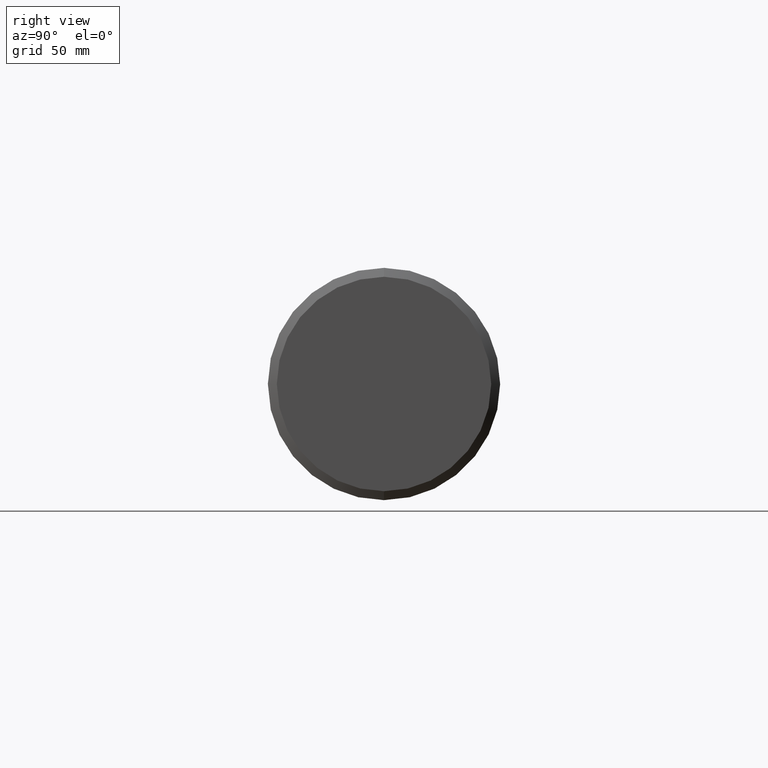
[diagram: clean part render]
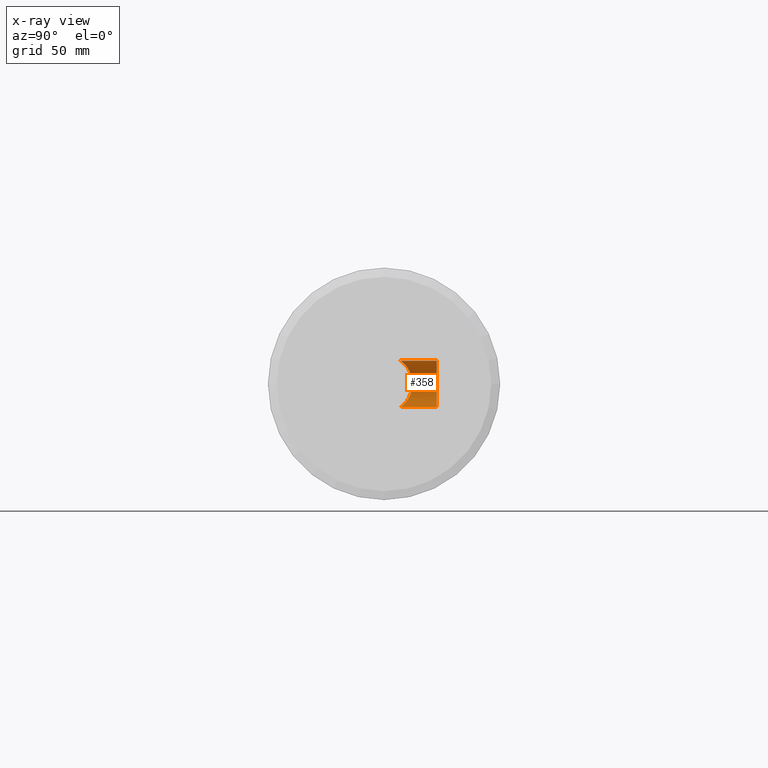
[diagram: x-ray — body ghosted, one internal face saturated and labeled with its STEP entity id]
A machine part, right view, then the same camera in x-ray: the body is ghosted and one INTERNAL B-rep face — a face not visible from any outside direction — is saturated and labeled: STEP entity #358.
In plain terms, the highlighted cylindrical surface (edge-blend (fillet) strip) has radius 9 mm, axis along (0, 1, 0).
Its self-contained STEP definition (entity closure, byte-faithful):
#268 = ORIENTED_EDGE ( 'NONE', *, *, #269, .F. ) ;
#269 = EDGE_CURVE ( 'NONE', #315, #367, #1396, .T. ) ;
#313 = EDGE_CURVE ( 'NONE', #314, #315, #1628, .T. ) ;
#314 = VERTEX_POINT ( 'NONE', #1549 ) ;
#315 = VERTEX_POINT ( 'NONE', #1629 ) ;
#316 = ORIENTED_EDGE ( 'NONE', *, *, #418, .T. ) ;
#358 = ADVANCED_FACE ( 'NONE', ( #1711 ), #1710, .F. ) ;
#359 = EDGE_LOOP ( 'NONE', ( #360, #316, #419, #268 ) ) ;
#360 = ORIENTED_EDGE ( 'NONE', *, *, #313, .F. ) ;
#367 = VERTEX_POINT ( 'NONE', #1778 ) ;
#407 = EDGE_CURVE ( 'NONE', #408, #367, #1830, .T. ) ;
#408 = VERTEX_POINT ( 'NONE', #1780 ) ;
#418 = EDGE_CURVE ( 'NONE', #314, #408, #1739, .T. ) ;
#419 = ORIENTED_EDGE ( 'NONE', *, *, #407, .T. ) ;
#1373 = DIRECTION ( 'NONE',  ( -0.0000000000000000000, 1.000000000000000000, -0.0000000000000000000 ) ) ;
#1374 = VECTOR ( 'NONE', #1373, 1000.000000000000000 ) ;
#1375 = CARTESIAN_POINT ( 'NONE',  ( 37.99999999999999300, -45.00000000000000000, 9.000000000000003600 ) ) ;
#1396 = LINE ( 'NONE', #1375, #1374 ) ;
#1505 = CARTESIAN_POINT ( 'NONE',  ( 35.56241124897054800, 6.773151438223648000, 8.668594485892423800 ) ) ;
#1506 = CARTESIAN_POINT ( 'NONE',  ( 35.00207751754993500, 6.994374932525801100, 8.491102994853516600 ) ) ;
#1507 = CARTESIAN_POINT ( 'NONE',  ( 34.73243995391133200, 7.115117841734931200, 8.390691223271426600 ) ) ;
#1508 = CARTESIAN_POINT ( 'NONE',  ( 33.94870166744479400, 7.496988139732116500, 8.056647767958544600 ) ) ;
#1509 = CARTESIAN_POINT ( 'NONE',  ( 33.45930032922770200, 7.777229871337514300, 7.790658944439846000 ) ) ;
#1510 = CARTESIAN_POINT ( 'NONE',  ( 32.76260568321712400, 8.209575931333963800, 7.324464543071621300 ) ) ;
#1511 = CARTESIAN_POINT ( 'NONE',  ( 32.53662872687979000, 8.355986537263556000, 7.157469761059587700 ) ) ;
#1512 = CARTESIAN_POINT ( 'NONE',  ( 37.99999999999999300, 6.324555320336747500, 9.000000000000003600 ) ) ;
#1513 = CARTESIAN_POINT ( 'NONE',  ( 37.68253252754211500, 6.324555320336748400, 9.000000000000003600 ) ) ;
#1514 = CARTESIAN_POINT ( 'NONE',  ( 37.36758758028091900, 6.348810466722651000, 8.983078160859561100 ) ) ;
#1515 = CARTESIAN_POINT ( 'NONE',  ( 36.75246002574575500, 6.439239462942379300, 8.918479843861545600 ) ) ;
#1516 = CARTESIAN_POINT ( 'NONE',  ( 36.45039919126622900, 6.505369226234806000, 8.870794822159627600 ) ) ;
#1517 = CARTESIAN_POINT ( 'NONE',  ( 35.85582995770661800, 6.672033518612054500, 8.746130474273416100 ) ) ;
#1523 = CARTESIAN_POINT ( 'NONE',  ( 28.99932927823758500, 11.00054877189567100, 0.2918124169081550100 ) ) ;
#1524 = CARTESIAN_POINT ( 'NONE',  ( 29.00071516957389400, 10.99941486172795500, -0.3318139073567099600 ) ) ;
#1525 = CARTESIAN_POINT ( 'NONE',  ( 29.01756788672949100, 10.98561425411706300, -0.6432021774064070600 ) ) ;
#1526 = CARTESIAN_POINT ( 'NONE',  ( 29.08387648782999300, 10.93146341324058600, -1.265123403570919800 ) ) ;
#1527 = CARTESIAN_POINT ( 'NONE',  ( 29.13388790492686900, 10.89066197485385100, -1.577329599810656700 ) ) ;
#1528 = CARTESIAN_POINT ( 'NONE',  ( 29.32798476031978700, 10.73303995099935200, -2.485920569551182300 ) ) ;
#1529 = CARTESIAN_POINT ( 'NONE',  ( 29.51573923968092600, 10.58116722006069200, -3.062465036862974000 ) ) ;
#1530 = CARTESIAN_POINT ( 'NONE',  ( 29.62486903029110500, 10.49464205608623900, 3.308720680275588400 ) ) ;
#1531 = CARTESIAN_POINT ( 'NONE',  ( 29.51740374296807800, 10.58071000996653600, 3.022975485109763200 ) ) ;
#1532 = CARTESIAN_POINT ( 'NONE',  ( 29.33239189154934900, 10.72960462351121400, 2.442414731716818600 ) ) ;
#1533 = CARTESIAN_POINT ( 'NONE',  ( 29.25414893641667300, 10.79298596828221700, 2.146096540715255200 ) ) ;
#1534 = CARTESIAN_POINT ( 'NONE',  ( 29.12746308204170400, 10.89589586246529200, 1.540691347388762700 ) ) ;
#1535 = CARTESIAN_POINT ( 'NONE',  ( 29.07882424051056300, 10.93558575195800800, 1.229394952563785700 ) ) ;
#1536 = CARTESIAN_POINT ( 'NONE',  ( 29.01479483002166800, 10.98788290588002600, 0.6040504403490600800 ) ) ;
#1548 = CARTESIAN_POINT ( 'NONE',  ( 37.99999999999999300, 6.324555320336755500, -9.000000000000003600 ) ) ;
#1549 = CARTESIAN_POINT ( 'NONE',  ( 37.99999999999999300, 6.324555320336755500, -9.000000000000003600 ) ) ;
#1568 = CARTESIAN_POINT ( 'NONE',  ( 32.10389577112371000, 8.645121770151503100, 6.805420925311279800 ) ) ;
#1569 = CARTESIAN_POINT ( 'NONE',  ( 31.89613122761812000, 8.788471667187545600, 6.619740072472650300 ) ) ;
#1570 = CARTESIAN_POINT ( 'NONE',  ( 31.49700084325641900, 9.070227025113949200, 6.228095582515657600 ) ) ;
#1571 = CARTESIAN_POINT ( 'NONE',  ( 31.30563826794921700, 9.208643388611824000, 6.022136398295314700 ) ) ;
#1572 = CARTESIAN_POINT ( 'NONE',  ( 30.93938088378450500, 9.478236986029939400, 5.588225433440531900 ) ) ;
#1573 = CARTESIAN_POINT ( 'NONE',  ( 30.76383285977946600, 9.609927495919244200, 5.359230109251044800 ) ) ;
#1574 = CARTESIAN_POINT ( 'NONE',  ( 30.27061858885429000, 9.984873728867818000, 4.646559155060434600 ) ) ;
#1575 = CARTESIAN_POINT ( 'NONE',  ( 29.98422543537160600, 10.20937874570888000, 4.136322440102720300 ) ) ;
#1590 = CARTESIAN_POINT ( 'NONE',  ( 29.87773150708439100, 10.29397154860352800, -3.888328396208949700 ) ) ;
#1591 = CARTESIAN_POINT ( 'NONE',  ( 30.01123720998654700, 10.18883133069315300, -4.155091366563233600 ) ) ;
#1592 = CARTESIAN_POINT ( 'NONE',  ( 30.29710993387521600, 9.966266519665961000, -4.663753832353084900 ) ) ;
#1593 = CARTESIAN_POINT ( 'NONE',  ( 30.45016142005556900, 9.848293230677773700, -4.907236627955245300 ) ) ;
#1594 = CARTESIAN_POINT ( 'NONE',  ( 30.93797117138971600, 9.477738077880625100, -5.608197967950896900 ) ) ;
#1595 = CARTESIAN_POINT ( 'NONE',  ( 31.30097602784043800, 9.208474581211614700, -6.036457715081511700 ) ) ;
#1596 = CARTESIAN_POINT ( 'NONE',  ( 35.00587502797889500, 6.982137574739811100, -8.506897211298197100 ) ) ;
#1597 = CARTESIAN_POINT ( 'NONE',  ( 35.56178348825189100, 6.754377607669270300, -8.684545351785480700 ) ) ;
#1598 = CARTESIAN_POINT ( 'NONE',  ( 36.45023659715003800, 6.505455086465420100, -8.870726595185537600 ) ) ;
#1599 = CARTESIAN_POINT ( 'NONE',  ( 36.75856573218269600, 6.437997773600920400, -8.919374952405206600 ) ) ;
#1600 = CARTESIAN_POINT ( 'NONE',  ( 37.37621731899002200, 6.347894227592907300, -8.983724380777518400 ) ) ;
#1601 = CARTESIAN_POINT ( 'NONE',  ( 37.68704853472901600, 6.324555320336752800, -9.000000000000003600 ) ) ;
#1602 = CARTESIAN_POINT ( 'NONE',  ( 31.90312402947133900, 8.783602170141907800, -6.626238705432866600 ) ) ;
#1603 = CARTESIAN_POINT ( 'NONE',  ( 32.11240224775289000, 8.639332235174972400, -6.812727360299576600 ) ) ;
#1604 = CARTESIAN_POINT ( 'NONE',  ( 32.54346331369476500, 8.351529607590643800, -7.162630017601404800 ) ) ;
#1605 = CARTESIAN_POINT ( 'NONE',  ( 32.76597117201578200, 8.207467075943753800, -7.326768196248671900 ) ) ;
#1606 = CARTESIAN_POINT ( 'NONE',  ( 33.45605761540719000, 7.779283033584941400, -7.788385423207064800 ) ) ;
#1607 = CARTESIAN_POINT ( 'NONE',  ( 33.94538452571082100, 7.498357647435774700, -8.055568128153844000 ) ) ;
#1628 = B_SPLINE_CURVE_WITH_KNOTS ( 'NONE', 3,
 ( #1548, #1601, #1600, #1599, #1598, #1597, #1596, #1607, #1606, #1605, #1604, #1603, #1602, #1595, #1594, #1593, #1592, #1591, #1590, #1529, #1528, #1527, #1526, #1525, #1524, #1523, #1536, #1535, #1534, #1533, #1532, #1531, #1530, #1575, #1574, #1573, #1572, #1571, #1570, #1569, #1568, #1511, #1510, #1509, #1508, #1507, #1506, #1505, #1517, #1516, #1515, #1514, #1513, #1512 ),
 .UNSPECIFIED., .F., .F.,
 ( 4, 2, 2, 2, 2, 2, 2, 2, 2, 2, 2, 2, 2, 2, 2, 2, 2, 2, 2, 2, 2, 2, 2, 2, 2, 2, 4 ),
 ( 0.02997932417630955500, 0.03091598688851944500, 0.03185264960072933800, 0.03372597502514909600, 0.03559930044956885500, 0.03653596316177873400, 0.03747262587398861300, 0.03934595129840839900, 0.04028261401061829200, 0.04121927672282819200, 0.04309260214724797800, 0.04402926485945787800, 0.04496592757166777100, 0.04590259028387766400, 0.04683925299608755800, 0.04777591570829745100, 0.04871257842050734400, 0.05058590384492713000, 0.05152256655713702300, 0.05245922926934691600, 0.05339589198155680900, 0.05433255469376670200, 0.05620588011818650200, 0.05714254283039640900, 0.05807920554260631600, 0.05901586825481620900, 0.05995253096702611600 ),
 .UNSPECIFIED. ) ;
#1629 = CARTESIAN_POINT ( 'NONE',  ( 37.99999999999999300, 6.324555320336747500, 9.000000000000003600 ) ) ;
#1677 = DIRECTION ( 'NONE',  ( 0.0000000000000000000, 0.0000000000000000000, 1.000000000000000000 ) ) ;
#1678 = DIRECTION ( 'NONE',  ( -0.0000000000000000000, 1.000000000000000000, -0.0000000000000000000 ) ) ;
#1679 = AXIS2_PLACEMENT_3D ( 'NONE', #1709, #1678, #1677 ) ;
#1709 = CARTESIAN_POINT ( 'NONE',  ( 37.99999999999999300, -45.00000000000000000, 0.0000000000000000000 ) ) ;
#1710 = CYLINDRICAL_SURFACE ( 'NONE', #1679, 9.000000000000003600 ) ;
#1711 = FACE_OUTER_BOUND ( 'NONE', #359, .T. ) ;
#1736 = DIRECTION ( 'NONE',  ( -0.0000000000000000000, 1.000000000000000000, -0.0000000000000000000 ) ) ;
#1737 = VECTOR ( 'NONE', #1736, 1000.000000000000000 ) ;
#1738 = CARTESIAN_POINT ( 'NONE',  ( 37.99999999999999300, -45.00000000000000000, -9.000000000000003600 ) ) ;
#1739 = LINE ( 'NONE', #1738, #1737 ) ;
#1778 = CARTESIAN_POINT ( 'NONE',  ( 37.99999999999999300, 20.45299999999999900, 9.000000000000001800 ) ) ;
#1780 = CARTESIAN_POINT ( 'NONE',  ( 37.99999999999999300, 20.45299999999999900, -9.000000000000001800 ) ) ;
#1781 = DIRECTION ( 'NONE',  ( 0.0000000000000000000, 0.0000000000000000000, 1.000000000000000000 ) ) ;
#1782 = DIRECTION ( 'NONE',  ( -0.0000000000000000000, 1.000000000000000000, -0.0000000000000000000 ) ) ;
#1783 = CARTESIAN_POINT ( 'NONE',  ( 37.99999999999999300, 20.45299999999999900, 0.0000000000000000000 ) ) ;
#1784 = AXIS2_PLACEMENT_3D ( 'NONE', #1783, #1782, #1781 ) ;
#1830 = CIRCLE ( 'NONE', #1784, 9.000000000000001800 ) ;